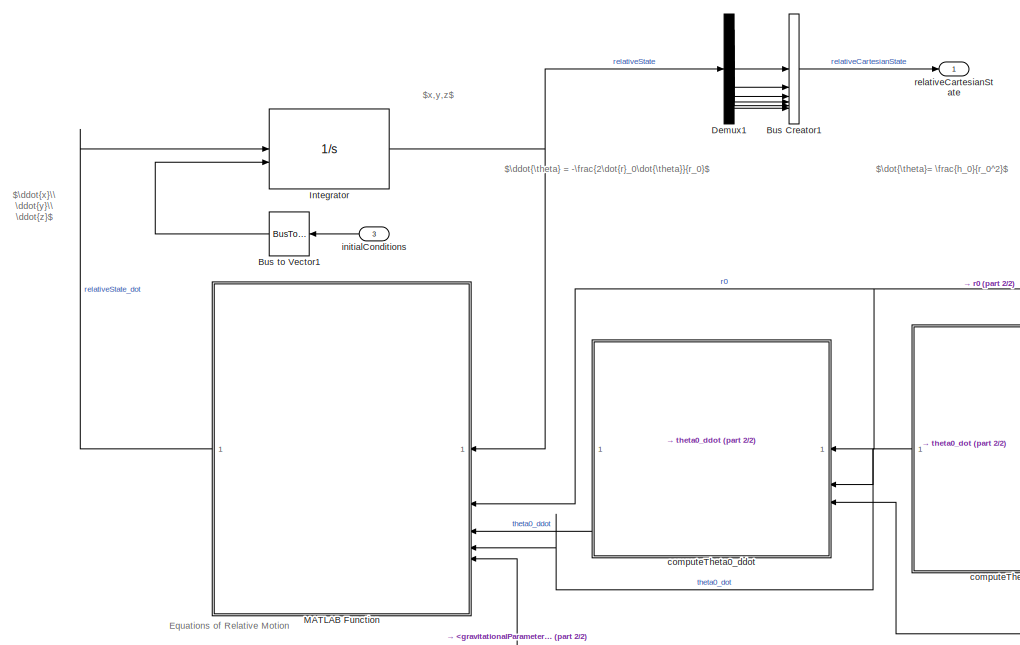
[diagram: root canvas - part 1/2, left side, full height]
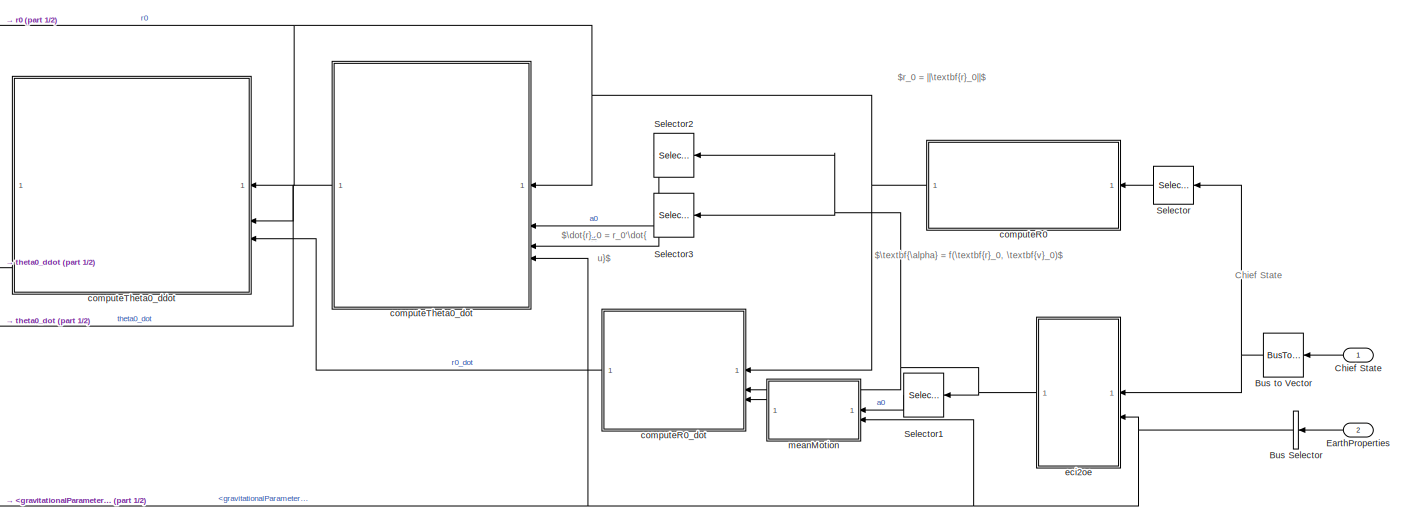
[diagram: root canvas - part 2/2, bottom center region]
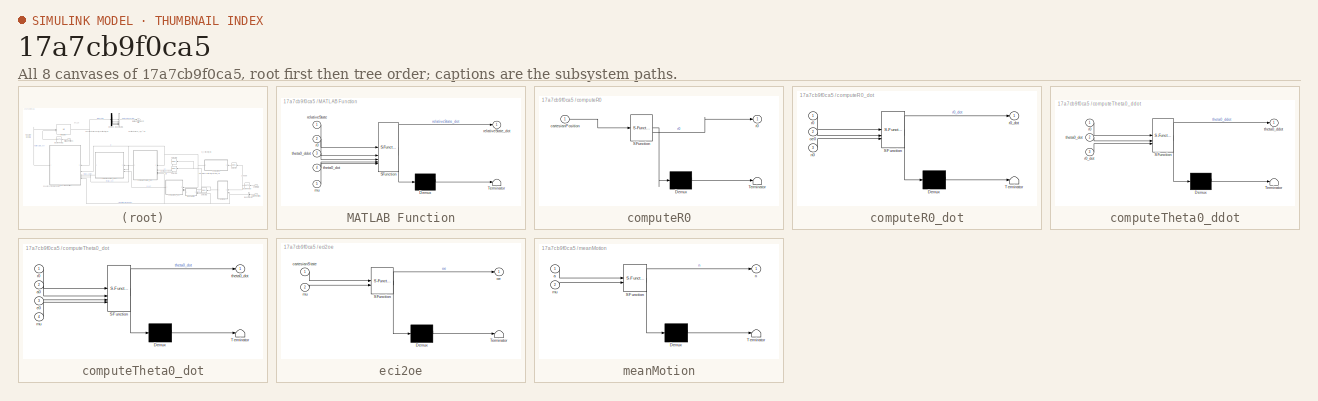
[diagram: thumbnail index - all 8 canvases of the model, root first then tree order]
MODEL slx_17a7cb9f0ca5
KIND model
CONFIG AbsTol = auto
CONFIG EnableMultiTasking = off
CONFIG FixedStep = dt
CONFIG MaxStep = max_step_size
CONFIG MinStep = auto
CONFIG RelTol = relative_tolerance
CONFIG SampleTimeConstraint = Unconstrained
CONFIG SolverName = ode4
CONFIG StartTime = 0.0
CONFIG StopTime = 10.0
BLOCK [BusCreator] Bus Creator1
  DisplayOption = bar
  InheritFromInputs = off
  Inputs = 6
  NonVirtualBus = on
  OutDataTypeStr = Bus: relativeCartesianState
BLOCK [BusSelector] Bus Selector
  OutputSignals = gravitationalParameter_m3_s2
BLOCK [BusToVector] Bus to Vector
BLOCK [BusToVector] Bus to Vector1
BLOCK [Inport] Chief State
  OutDataTypeStr = Bus: cartesianState
BLOCK [Demux] Demux1
  Outputs = 6
BLOCK [Inport] EarthProperties
  OutDataTypeStr = Bus: earthProperties
  Port = 2
BLOCK [Integrator] Integrator
  InitialConditionSource = external
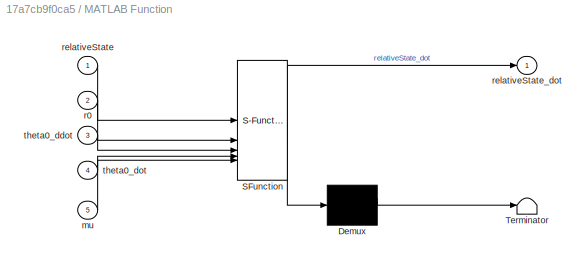
BLOCK [SubSystem] MATLAB Function
  ErrorFcn = Stateflow.Translate.translate
  LibrarySourceBlock = simulink/User-Defined\nFunctions/MATLAB Function
  PermitHierarchicalResolution = ExplicitOnly
  SFBlockType = MATLAB Function
  TreatAsAtomicUnit = on
BLOCK [Demux] MATLAB Function/ Demux 
  Outputs = 1
BLOCK [S-Function] MATLAB Function/ SFunction 
  EnableBusSupport = on
  FunctionName = sf_sfun
  PortCounts = [5 2]
  SFcnIsStateOwnerBlock = off
  SFunctionDeploymentMode = off
  Tag = Stateflow S-Function 7
BLOCK [Terminator] MATLAB Function/ Terminator 
BLOCK [Inport] MATLAB Function/mu
  Port = 5
BLOCK [Inport] MATLAB Function/r0
  Port = 2
BLOCK [Inport] MATLAB Function/relativeState
BLOCK [Outport] MATLAB Function/relativeState_dot
BLOCK [Inport] MATLAB Function/theta0_ddot
  Port = 3
BLOCK [Inport] MATLAB Function/theta0_dot
  Port = 4
BLOCK [Selector] Selector
  IndexOptions = Index vector (dialog)
  Indices = 1:3
  InputPortWidth = 6
  OutputSizes = 1
BLOCK [Selector] Selector1
  IndexOptions = Index vector (dialog)
  Indices = 1
  InputPortWidth = 6
  OutputSizes = 1
BLOCK [Selector] Selector2
  IndexOptions = Index vector (dialog)
  Indices = 1
  InputPortWidth = 6
  OutputSizes = 1
BLOCK [Selector] Selector3
  IndexOptions = Index vector (dialog)
  Indices = 2
  InputPortWidth = 6
  OutputSizes = 1
BLOCK [SubSystem] computeR0
  ErrorFcn = Stateflow.Translate.translate
  LibrarySourceBlock = simulink/User-Defined\nFunctions/MATLAB Function
  PermitHierarchicalResolution = ExplicitOnly
  SFBlockType = MATLAB Function
  TreatAsAtomicUnit = on
BLOCK [Demux] computeR0/ Demux 
  Outputs = 1
BLOCK [S-Function] computeR0/ SFunction 
  EnableBusSupport = on
  FunctionName = sf_sfun
  PortCounts = [1 2]
  SFcnIsStateOwnerBlock = off
  SFunctionDeploymentMode = off
  Tag = Stateflow S-Function 1
BLOCK [Terminator] computeR0/ Terminator 
BLOCK [Inport] computeR0/cartesianPosition
BLOCK [Outport] computeR0/r0
BLOCK [SubSystem] computeR0_dot
  ErrorFcn = Stateflow.Translate.translate
  LibrarySourceBlock = simulink/User-Defined\nFunctions/MATLAB Function
  PermitHierarchicalResolution = ExplicitOnly
  SFBlockType = MATLAB Function
  TreatAsAtomicUnit = on
BLOCK [Demux] computeR0_dot/ Demux 
  Outputs = 1
BLOCK [S-Function] computeR0_dot/ SFunction 
  EnableBusSupport = on
  FunctionName = sf_sfun
  PortCounts = [3 2]
  SFcnIsStateOwnerBlock = off
  SFunctionDeploymentMode = off
  Tag = Stateflow S-Function 4
BLOCK [Terminator] computeR0_dot/ Terminator 
BLOCK [Inport] computeR0_dot/n0
  Port = 3
BLOCK [Inport] computeR0_dot/oe0
  Port = 2
BLOCK [Inport] computeR0_dot/r0
BLOCK [Outport] computeR0_dot/r0_dot
BLOCK [SubSystem] computeTheta0_ddot
  ErrorFcn = Stateflow.Translate.translate
  LibrarySourceBlock = simulink/User-Defined\nFunctions/MATLAB Function
  PermitHierarchicalResolution = ExplicitOnly
  SFBlockType = MATLAB Function
  TreatAsAtomicUnit = on
BLOCK [Demux] computeTheta0_ddot/ Demux 
  Outputs = 1
BLOCK [S-Function] computeTheta0_ddot/ SFunction 
  EnableBusSupport = on
  FunctionName = sf_sfun
  PortCounts = [3 2]
  SFcnIsStateOwnerBlock = off
  SFunctionDeploymentMode = off
  Tag = Stateflow S-Function 6
BLOCK [Terminator] computeTheta0_ddot/ Terminator 
BLOCK [Inport] computeTheta0_ddot/r0
BLOCK [Inport] computeTheta0_ddot/r0_dot
  Port = 3
BLOCK [Outport] computeTheta0_ddot/theta0_ddot
BLOCK [Inport] computeTheta0_ddot/theta0_dot
  Port = 2
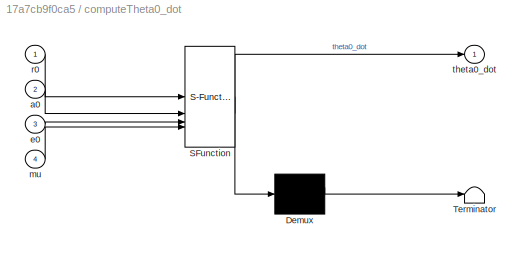
BLOCK [SubSystem] computeTheta0_dot
  ErrorFcn = Stateflow.Translate.translate
  LibrarySourceBlock = simulink/User-Defined\nFunctions/MATLAB Function
  PermitHierarchicalResolution = ExplicitOnly
  SFBlockType = MATLAB Function
  TreatAsAtomicUnit = on
BLOCK [Demux] computeTheta0_dot/ Demux 
  Outputs = 1
BLOCK [S-Function] computeTheta0_dot/ SFunction 
  EnableBusSupport = on
  FunctionName = sf_sfun
  PortCounts = [4 2]
  SFcnIsStateOwnerBlock = off
  SFunctionDeploymentMode = off
  Tag = Stateflow S-Function 5
BLOCK [Terminator] computeTheta0_dot/ Terminator 
BLOCK [Inport] computeTheta0_dot/a0
  Port = 2
BLOCK [Inport] computeTheta0_dot/e0
  Port = 3
BLOCK [Inport] computeTheta0_dot/mu
  Port = 4
BLOCK [Inport] computeTheta0_dot/r0
BLOCK [Outport] computeTheta0_dot/theta0_dot
BLOCK [SubSystem] eci2oe
  ErrorFcn = Stateflow.Translate.translate
  LibrarySourceBlock = simulink/User-Defined\nFunctions/MATLAB Function
  PermitHierarchicalResolution = ExplicitOnly
  SFBlockType = MATLAB Function
  TreatAsAtomicUnit = on
BLOCK [Demux] eci2oe/ Demux 
  Outputs = 1
BLOCK [S-Function] eci2oe/ SFunction 
  EnableBusSupport = on
  FunctionName = sf_sfun
  PortCounts = [2 2]
  SFcnIsStateOwnerBlock = off
  SFunctionDeploymentMode = off
  Tag = Stateflow S-Function 2
BLOCK [Terminator] eci2oe/ Terminator 
BLOCK [Inport] eci2oe/cartesianState
BLOCK [Inport] eci2oe/mu
  Port = 2
BLOCK [Outport] eci2oe/oe
BLOCK [Inport] initialConditions
  OutDataTypeStr = Bus: relativeCartesianState
  Port = 3
BLOCK [SubSystem] meanMotion
  ErrorFcn = Stateflow.Translate.translate
  LibrarySourceBlock = simulink/User-Defined\nFunctions/MATLAB Function
  PermitHierarchicalResolution = ExplicitOnly
  SFBlockType = MATLAB Function
  TreatAsAtomicUnit = on
BLOCK [Demux] meanMotion/ Demux 
  Outputs = 1
BLOCK [S-Function] meanMotion/ SFunction 
  EnableBusSupport = on
  FunctionName = sf_sfun
  PortCounts = [2 2]
  SFcnIsStateOwnerBlock = off
  SFunctionDeploymentMode = off
  Tag = Stateflow S-Function 3
BLOCK [Terminator] meanMotion/ Terminator 
BLOCK [Inport] meanMotion/a
BLOCK [Inport] meanMotion/mu
  Port = 2
BLOCK [Outport] meanMotion/n
BLOCK [Outport] relativeCartesianState
  OutDataTypeStr = Bus: relativeCartesianState
ANNOTATION (root): Chief State
ANNOTATION (root): Equations of Relative Motion
ANNOTATION (root): $\ddot{\theta} = -\frac{2\dot{r}_0\dot{\theta}}{r_0}$
ANNOTATION (root): $\ddot{x}\\ \ddot{y}\\ \ddot{z}$
ANNOTATION (root): $\dot{\theta}= \frac{h_0}{r_0^2}$
ANNOTATION (root): $\dot{r}_0 = r_0'\dot{\nu}$
ANNOTATION (root): $\textbf{\alpha} = f(\textbf{r}_0, \textbf{v}_0)$
ANNOTATION (root): $r_0 = ||\textbf{r}_0||$
ANNOTATION (root): $x,y,z$
LINE Bus Creator1:1 -> relativeCartesianState:1
NET Bus Selector:1 -> MATLAB Function:5, computeTheta0_dot:4, eci2oe:2, meanMotion:2
LINE Bus to Vector1:1 -> Integrator:2
NET Bus to Vector:1 -> Selector:1, eci2oe:1
LINE Chief State:1 -> Bus to Vector:1
LINE Demux1:1 -> Bus Creator1:1
LINE Demux1:2 -> Bus Creator1:2
LINE Demux1:3 -> Bus Creator1:3
LINE Demux1:4 -> Bus Creator1:4
LINE Demux1:5 -> Bus Creator1:5
LINE Demux1:6 -> Bus Creator1:6
LINE EarthProperties:1 -> Bus Selector:1
NET Integrator:1 -> Demux1:1, MATLAB Function:1
LINE MATLAB Function:1 -> Integrator:1
LINE Selector1:1 -> meanMotion:1
LINE Selector2:1 -> computeTheta0_dot:2
LINE Selector3:1 -> computeTheta0_dot:3
LINE Selector:1 -> computeR0:1
NET computeR0:1 -> MATLAB Function:2, computeR0_dot:1, computeTheta0_ddot:1, computeTheta0_dot:1
LINE computeR0_dot:1 -> computeTheta0_ddot:3
LINE computeTheta0_ddot:1 -> MATLAB Function:3
NET computeTheta0_dot:1 -> MATLAB Function:4, computeTheta0_ddot:2
NET eci2oe:1 -> Selector1:1, Selector2:1, Selector3:1, computeR0_dot:2
LINE initialConditions:1 -> Bus to Vector1:1
LINE meanMotion:1 -> computeR0_dot:3
note: NET lines group one-source signal fan-out (src -> all destinations, sorted); 1:1 wires keep LINE
CHART computeR0 states=1 transitions=1
  STATE_LABEL 'eML_blk_kernel()'
  STATE_LABEL 'SCRIPT:\nfunction r0  = computeR0(cartesianPosition)\nr0 = computeR0(cartesianPosition);\nend\n'
CHART eci2oe states=1 transitions=1
  STATE_LABEL 'eML_blk_kernel()'
  STATE_LABEL 'SCRIPT:\nfunction oe = eci2oe(cartesianState,mu)\n[oe,~,~,~] = eci2oe( cartesianState , mu );\nend\n'
CHART meanMotion states=1 transitions=1
  STATE_LABEL 'eML_blk_kernel()'
  STATE_LABEL 'SCRIPT:\nfunction n  = meanMotion(a,mu)\nn = meanMotion(mu,a);\nend\n'
CHART computeR0_dot states=1 transitions=1
  STATE_LABEL 'eML_blk_kernel()'
  STATE_LABEL 'SCRIPT:\nfunction r0_dot  = computeR0_dot(r0,oe0, n0)\nr0_dot = computeR0_dot(oe0, n0, r0);\nend\n'
CHART computeTheta0_dot states=1 transitions=1
  STATE_LABEL 'eML_blk_kernel()'
  STATE_LABEL 'SCRIPT:\nfunction theta0_dot = computeTheta0_dot(r0,a0,e0,mu)\ntheta0_dot = computeTheta0_dot(r0,mu,a0,e0);\nend'
CHART computeTheta0_ddot states=1 transitions=1
  STATE_LABEL 'eML_blk_kernel()'
  STATE_LABEL 'SCRIPT:\nfunction theta0_ddot = computeTheta0_ddot(r0,theta0_dot,r0_dot)\ntheta0_ddot = computeTheta0_ddot(r0,r0_dot,theta0_dot);\nend\n'
CHART MATLAB Function states=1 transitions=1
  STATE_LABEL 'eML_blk_kernel()'
  STATE_LABEL 'SCRIPT:\nfunction relativeState_dot = computeRelativeDynamics(relativeState,r0,theta0_ddot,theta0_dot,mu)\nrelativeState_dot = computeRelativeDynamics(relativeState,r0,theta0_dot,theta0_ddot,mu);\nend\n'
CHART  states=0 transitions=0
CHART  states=0 transitions=0
CHART  states=0 transitions=0
CHART  states=0 transitions=0
CHART  states=0 transitions=0
CHART  states=0 transitions=0
CHART  states=0 transitions=0
